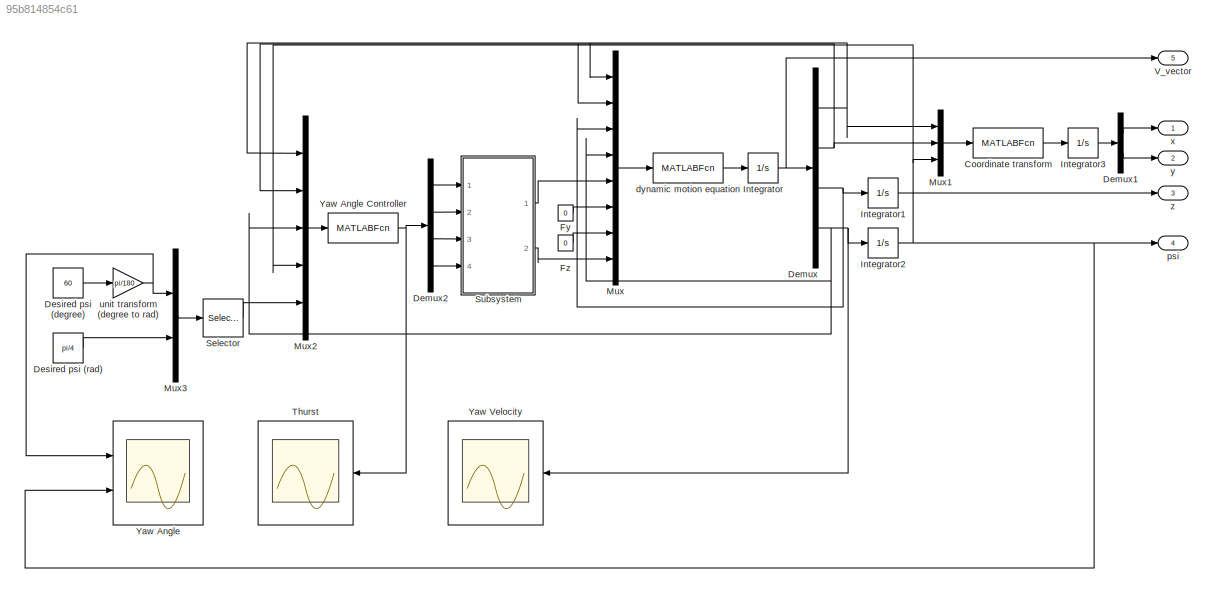
MODEL slx_95b814854c61
KIND model
CONFIG AbsTol = auto
CONFIG EnableMultiTasking = off
CONFIG FixedStep = auto
CONFIG MaxStep = auto
CONFIG MinStep = auto
CONFIG RelTol = 1e-3
CONFIG SampleTimeConstraint = Unconstrained
CONFIG Solver = VariableStepAuto
CONFIG SolverName = VariableStepAuto
CONFIG StartTime = 0.0
CONFIG StopTime = 15
BLOCK [MATLABFcn] Coordinate transform
  MATLABFcn = Coord_Trans
  OutputDimensions = 2
  Ports = [1, 1]
BLOCK [Demux] Demux
  DisplayOption = bar
  Ports = [1, 4]
BLOCK [Demux] Demux1
  DisplayOption = bar
  Outputs = 2
  Ports = [1, 2]
BLOCK [Demux] Demux2
  DisplayOption = bar
  Ports = [1, 4]
BLOCK [Constant] Desired psi (degree)
  Value = 60
BLOCK [Constant] Desired psi (rad)
  Value = pi/4
BLOCK [Constant] Fy
  Value = 0
BLOCK [Constant] Fz
  Value = 0
BLOCK [Integrator] Integrator
  Ports = [1, 1]
BLOCK [Integrator] Integrator1
  Ports = [1, 1]
BLOCK [Integrator] Integrator2
  Ports = [1, 1]
BLOCK [Integrator] Integrator3
  Ports = [1, 1]
BLOCK [Mux] Mux
  DisplayOption = bar
  Inputs = 8
  Ports = [8, 1]
BLOCK [Mux] Mux1
  DisplayOption = bar
  Inputs = 3
  Ports = [3, 1]
BLOCK [Mux] Mux2
  DisplayOption = bar
  Inputs = 5
  Ports = [5, 1]
BLOCK [Mux] Mux3
  DisplayOption = bar
  Inputs = 2
  Ports = [2, 1]
BLOCK [Selector] Selector
  IndexOptions = Index vector (dialog)
  Indices = 1
  InputPortWidth = 2
  OutputSizes = 1
  Ports = [1, 1]
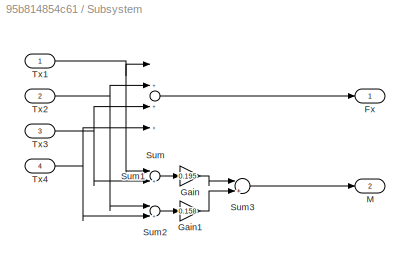
BLOCK [SubSystem] Subsystem
  Ports = [4, 2]
  RequestExecContextInheritance = off
BLOCK [Outport] Subsystem/Fx
  IconDisplay = Port number
BLOCK [Gain] Subsystem/Gain
  Gain = 0.195
  OutDataTypeStr = Inherit: Inherit via internal rule
  ParamDataTypeStr = Inherit: Inherit via internal rule
  SaturateOnIntegerOverflow = off
BLOCK [Gain] Subsystem/Gain1
  Gain = 0.158
  OutDataTypeStr = Inherit: Inherit via internal rule
  ParamDataTypeStr = Inherit: Inherit via internal rule
  SaturateOnIntegerOverflow = off
BLOCK [Outport] Subsystem/M
  IconDisplay = Port number
  Port = 2
BLOCK [Sum] Subsystem/Sum
  InputSameDT = off
  Inputs = |++++
  OutDataTypeStr = Inherit: Inherit via internal rule
  Ports = [4, 1]
  SaturateOnIntegerOverflow = off
BLOCK [Sum] Subsystem/Sum1
  InputSameDT = off
  Inputs = |+-
  OutDataTypeStr = Inherit: Inherit via internal rule
  Ports = [2, 1]
  SaturateOnIntegerOverflow = off
BLOCK [Sum] Subsystem/Sum2
  InputSameDT = off
  Inputs = |+-
  OutDataTypeStr = Inherit: Inherit via internal rule
  Ports = [2, 1]
  SaturateOnIntegerOverflow = off
BLOCK [Sum] Subsystem/Sum3
  InputSameDT = off
  Inputs = |++
  OutDataTypeStr = Inherit: Inherit via internal rule
  Ports = [2, 1]
  SaturateOnIntegerOverflow = off
BLOCK [Inport] Subsystem/Tx1
  IconDisplay = Port number
BLOCK [Inport] Subsystem/Tx2
  IconDisplay = Port number
  Port = 2
BLOCK [Inport] Subsystem/Tx3
  IconDisplay = Port number
  Port = 3
BLOCK [Inport] Subsystem/Tx4
  IconDisplay = Port number
  Port = 4
BLOCK [Scope] Thurst
  Floating = off
  NumInputPorts = 1
  Ports = [1]
  ScopeSpecificationString = Simulink.scopes.TimeScopeBlockCfg('CurrentConfiguration', extmgr.ConfigurationSet(extmgr.Configuration('Core','General UI',true),extmgr.Configuration('Core','Source UI',true),extmgr.Configuration('Sources','WiredSimulink',true,'DataLoggingVariableName','ScopeData1'),extmgr.Configuration('Visuals','Time Domain',true,'SerializedDisplays',{struct('MinYLimReal','-0.0000008','MaxYLimReal','0.0000007','...<+1625ch>
BLOCK [Outport] V_vector
  IconDisplay = Port number
  Port = 5
BLOCK [Scope] Yaw Angle
  Floating = off
  NumInputPorts = 2
  Ports = [2]
  ScopeSpecificationString = Simulink.scopes.TimeScopeBlockCfg('CurrentConfiguration', extmgr.ConfigurationSet(extmgr.Configuration('Core','General UI',true),extmgr.Configuration('Core','Source UI',true),extmgr.Configuration('Sources','WiredSimulink',true),extmgr.Configuration('Visuals','Time Domain',true,'SerializedDisplays',{struct('MinYLimReal','-0.1309','MaxYLimReal','1.1781','YLabelReal','','MinYLimMag','0.00000','MaxYLi...<+1484ch>
BLOCK [MATLABFcn] Yaw Angle Controller
  MATLABFcn = YawAngle_Controller
  OutputDimensions = 4
  Ports = [1, 1]
BLOCK [Scope] Yaw Velocity
  Floating = off
  NumInputPorts = 1
  Ports = [1]
  ScopeSpecificationString = Simulink.scopes.TimeScopeBlockCfg('CurrentConfiguration', extmgr.ConfigurationSet(extmgr.Configuration('Core','General UI',true),extmgr.Configuration('Core','Source UI',true),extmgr.Configuration('Sources','WiredSimulink',true,'DataLoggingVariableName','ScopeData2'),extmgr.Configuration('Visuals','Time Domain',true,'SerializedDisplays',{struct('MinYLimReal','-0.08809','MaxYLimReal','0.7928','YLabe...<+1362ch>
BLOCK [MATLABFcn] dynamic motion equation
  MATLABFcn = DynMoEqu
  OutputDimensions = 4
  Ports = [1, 1]
BLOCK [Outport] psi
  IconDisplay = Port number
  Port = 4
BLOCK [Gain] unit transform (degree to rad)
  Gain = pi/180
  OutDataTypeStr = Inherit: Inherit via internal rule
  ParamDataTypeStr = Inherit: Inherit via internal rule
  SaturateOnIntegerOverflow = off
BLOCK [Outport] x
  IconDisplay = Port number
BLOCK [Outport] y
  IconDisplay = Port number
  Port = 2
BLOCK [Outport] z
  IconDisplay = Port number
  Port = 3
LINE Coordinate transform:1 -> Integrator3:1
LINE Demux1:1 -> x:1
LINE Demux1:2 -> y:1
LINE Demux2:1 -> Subsystem:1
LINE Demux2:2 -> Subsystem:2
LINE Demux2:3 -> Subsystem:3
LINE Demux2:4 -> Subsystem:4
NET Demux:1 -> Mux1:1, Mux2:1, Mux:1
NET Demux:2 -> Mux1:2, Mux2:2, Mux:2
NET Demux:3 -> Integrator1:1, Mux:3
NET Demux:4 -> Integrator2:1, Mux2:3, Mux:4, Yaw Velocity:1
LINE Desired psi (degree):1 -> unit transform (degree to rad):1
LINE Desired psi (rad):1 -> Mux3:2
LINE Fy:1 -> Mux:6
LINE Fz:1 -> Mux:7
LINE Integrator1:1 -> z:1
NET Integrator2:1 -> Mux1:3, Mux2:4, Yaw Angle:2, psi:1
LINE Integrator3:1 -> Demux1:1
NET Integrator:1 -> Demux:1, V_vector:1
LINE Mux1:1 -> Coordinate transform:1
LINE Mux2:1 -> Yaw Angle Controller:1
LINE Mux3:1 -> Selector:1
LINE Mux:1 -> dynamic motion equation:1
LINE Selector:1 -> Mux2:5
LINE Subsystem/Gain1:1 -> Subsystem/Sum3:2
LINE Subsystem/Gain:1 -> Subsystem/Sum3:1
LINE Subsystem/Sum1:1 -> Subsystem/Gain:1
LINE Subsystem/Sum2:1 -> Subsystem/Gain1:1
LINE Subsystem/Sum3:1 -> Subsystem/M:1
LINE Subsystem/Sum:1 -> Subsystem/Fx:1
NET Subsystem/Tx1:1 -> Subsystem/Sum1:1, Subsystem/Sum:1
NET Subsystem/Tx2:1 -> Subsystem/Sum2:1, Subsystem/Sum:2
NET Subsystem/Tx3:1 -> Subsystem/Sum1:2, Subsystem/Sum:3
NET Subsystem/Tx4:1 -> Subsystem/Sum2:2, Subsystem/Sum:4
LINE Subsystem:1 -> Mux:5
LINE Subsystem:2 -> Mux:8
NET Yaw Angle Controller:1 -> Demux2:1, Thurst:1
LINE dynamic motion equation:1 -> Integrator:1
NET unit transform (degree to rad):1 -> Mux3:1, Yaw Angle:1
note: NET lines group one-source signal fan-out (src -> all destinations, sorted); 1:1 wires keep LINE
